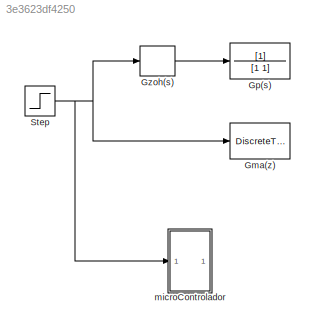
MODEL slx_3e3623df4250
KIND model
CONFIG AbsTol = auto
CONFIG FixedStep = auto
CONFIG MaxStep = auto
CONFIG MinStep = auto
CONFIG RelTol = 1e-3
CONFIG SampleTimeConstraint = Unconstrained
CONFIG Solver = VariableStepAuto
CONFIG SolverMode = Auto
CONFIG SolverName = VariableStepAuto
CONFIG StartTime = 0.0
CONFIG StopTime = 10.0
BLOCK [DiscreteTransferFcn] Gma(z)
  Denominator = [1 -exp(-T)]
  InputPortMap = u0
  Numerator = [1-exp(-T)]
  Ports = [1, 1]
BLOCK [TransferFcn] Gp(s)
  Denominator = [1 1]
BLOCK [ZeroOrderHold] Gzoh(s)
BLOCK [Step] Step
  SampleTime = 0
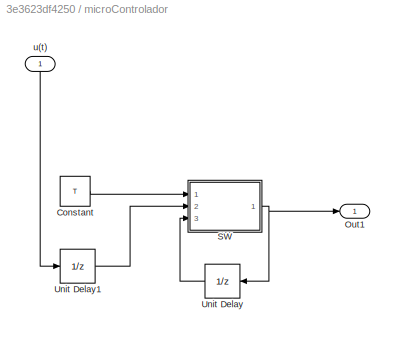
BLOCK [SubSystem] microControlador
  Ports = [1, 1]
  RequestExecContextInheritance = off
  Variant = off
BLOCK [Constant] microControlador/Constant
  Value = T
BLOCK [Outport] microControlador/Out1
  IconDisplay = Port number
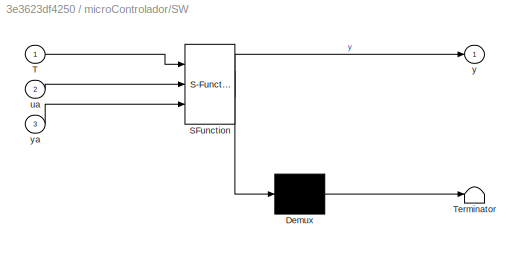
BLOCK [SubSystem] microControlador/SW
  ErrorFcn = Stateflow.Translate.translate
  PermitHierarchicalResolution = ExplicitOnly
  Ports = [3, 1]
  RequestExecContextInheritance = off
  SFBlockType = MATLAB Function
  TreatAsAtomicUnit = on
  Variant = off
BLOCK [Demux] microControlador/SW/ Demux 
  Outputs = 1
  Ports = [1, 1]
BLOCK [S-Function] microControlador/SW/ SFunction 
  EnableBusSupport = off
  FunctionName = sf_sfun
  PortCounts = [3 2]
  Ports = [3, 2]
  SFunctionDeploymentMode = off
  Tag = Stateflow S-Function SW 2
BLOCK [Terminator] microControlador/SW/ Terminator 
BLOCK [Inport] microControlador/SW/T
  IconDisplay = Port number
BLOCK [Inport] microControlador/SW/ua
  IconDisplay = Port number
  Port = 2
BLOCK [Outport] microControlador/SW/y
  IconDisplay = Port number
BLOCK [Inport] microControlador/SW/ya
  IconDisplay = Port number
  Port = 3
BLOCK [UnitDelay] microControlador/Unit Delay
  InputProcessing = Elements as channels (sample based)
  SampleTime = -1
BLOCK [UnitDelay] microControlador/Unit Delay1
  InputProcessing = Elements as channels (sample based)
  SampleTime = -1
BLOCK [Inport] microControlador/u(t)
  IconDisplay = Port number
LINE Gzoh(s):1 -> Gp(s):1
NET Step:1 -> Gma(z):1, Gzoh(s):1, microControlador:1
LINE microControlador/Constant:1 -> microControlador/SW:1
NET microControlador/SW:1 -> microControlador/Out1:1, microControlador/Unit Delay:1
LINE microControlador/Unit Delay1:1 -> microControlador/SW:2
LINE microControlador/Unit Delay:1 -> microControlador/SW:3
LINE microControlador/u(t):1 -> microControlador/Unit Delay1:1
note: NET lines group one-source signal fan-out (src -> all destinations, sorted); 1:1 wires keep LINE
CHART microControlador/SW states=1 transitions=1
  STATE_LABEL 'eML_blk_kernel()'
  STATE_LABEL 'SCRIPT:\nfunction y = ModeloSW(T, ua, ya)\n\n%#codegen\na = 1-exp(-T)\nb = exp(-T)\ny = a*ua + b*ya;'
